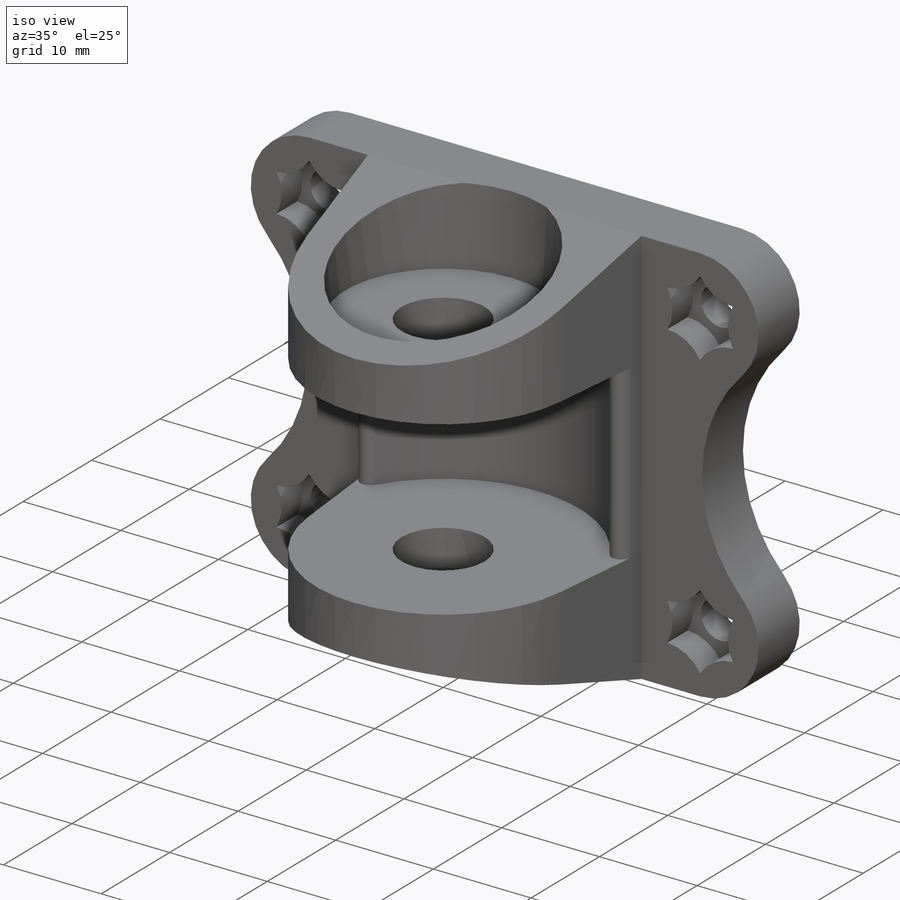
[diagram: iso view]
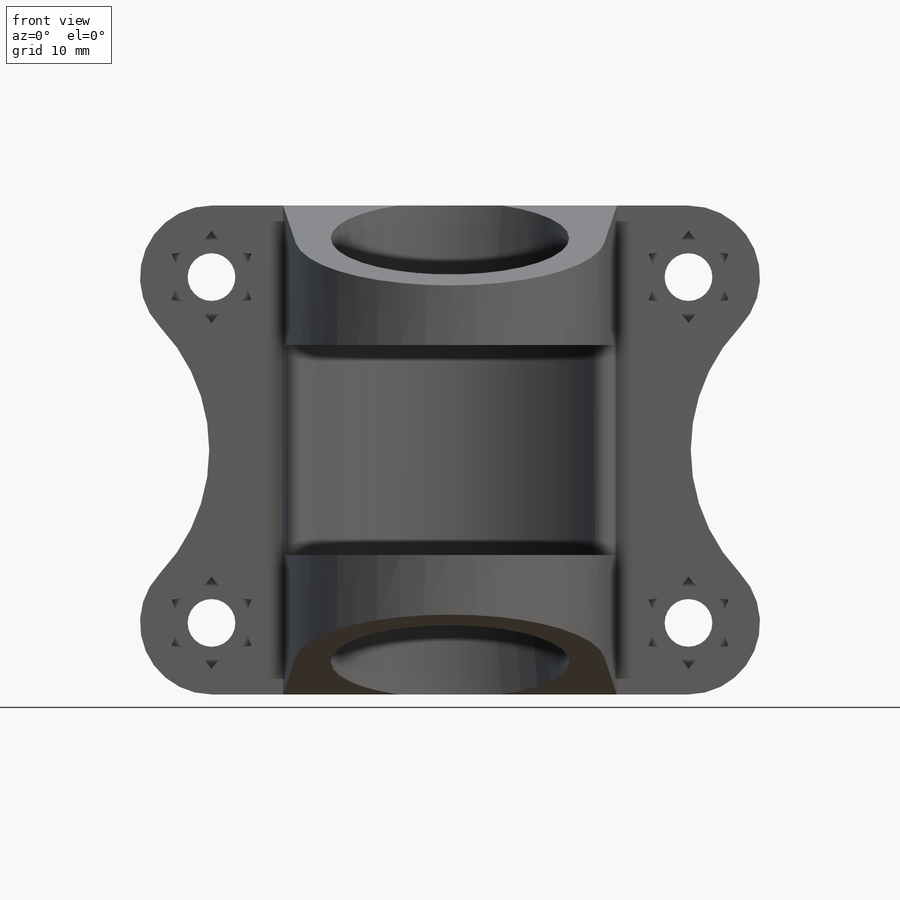
[diagram: front view]
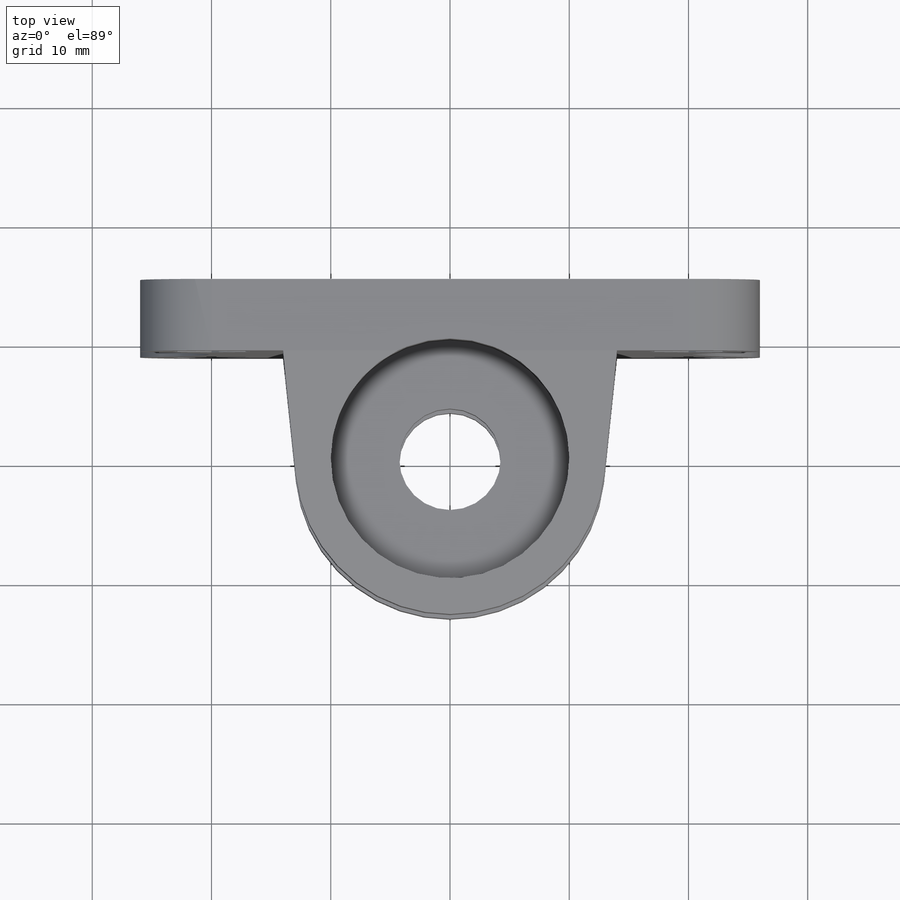
[diagram: top view]
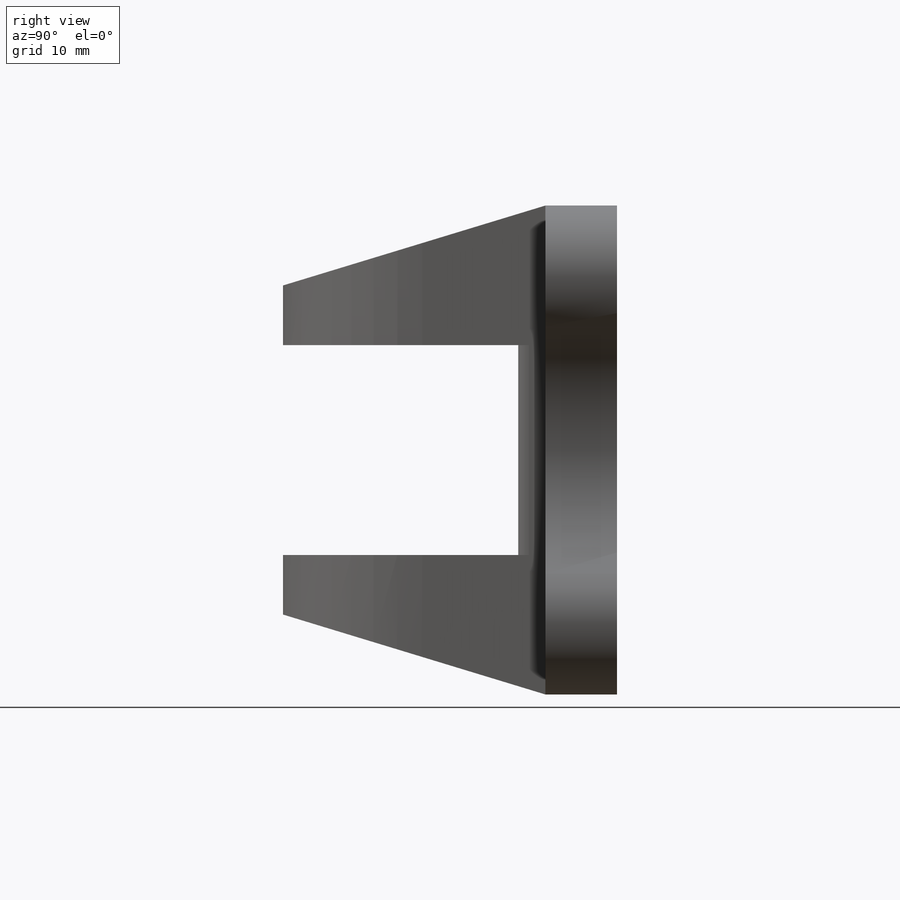
[diagram: right view]
SOLIDWORKS PART (.sldprt)
format: sldprt  version: not decoded by parser v0  size: 369,152 bytes
history: native  units: mm
features: sketch x9, cut_extrude x6, extrude x2, material x1, cut_revolve x1, fillet x1, pattern_linear x1 (+11 scaffold rows collapsed)
feature tree (32):
  scaffold x11  (default folders/planes/origin — collapsed)
  material  "Material <not specified>"
  sketch  "Sketch1"  dims[D1=8.5mm D3=13.0mm D2=15.0mm D4=28.0mm D5=6.0mm]
  extrude  "Boss-Extrude1"  Depth=41mm
  sketch  "Sketch2"  dims[D1=17.6mm D2=28.0mm]
  cut_revolve  "Cut-Revolve1"  Angle=360deg
  sketch  "Sketch3"  dims[c1.D1=5.0mm c1.D2=~9.601443mm c2.D2=90.0deg c3.D2=5.0mm]
  cut_extrude  "Cut-Extrude1"  [1 undecoded]
  sketch  "Sketch7"  dims[D2=12.0mm D3=30.0mm D4=2.0mm D1=12.0mm]
  extrude  "Boss-Extrude2"  Depth=6mm
  sketch  "Sketch8"  dims[D1=5.7mm]
  cut_extrude  "Cut-Extrude6"  Depth=3mm
  sketch  "Sketch4"  dims[D3=4.0mm D1=6.0mm D2=6.0mm D4=40.0mm D5=29.0mm]
  cut_extrude  "Cut-Extrude2"  Depth=7mm
  sketch  "Sketch5"  dims[D1=20.0mm]
  cut_extrude  "Cut-Extrude3"  Depth=8mm
  sketch  "Sketch6"
  cut_extrude  "Cut-Extrude4"  Depth=8mm
  fillet  "Fillet1"  Radius=1mm
  sketch  "Sketch9"  dims[D1=6.7mm]
  cut_extrude  "Cut-Extrude7"  [1 undecoded]
  pattern_linear  "LPattern1"  Count1=2 Count2=2 Spacing1=40mm Spacing2=29mm
decode coverage: 17 of 20 modeling features carry decoded parameters
note: ~ marks probable driven/reference dimensions
note: 2 parameter values undecoded
note: suppression state not decoded; provenance and decode notes live in map.json
